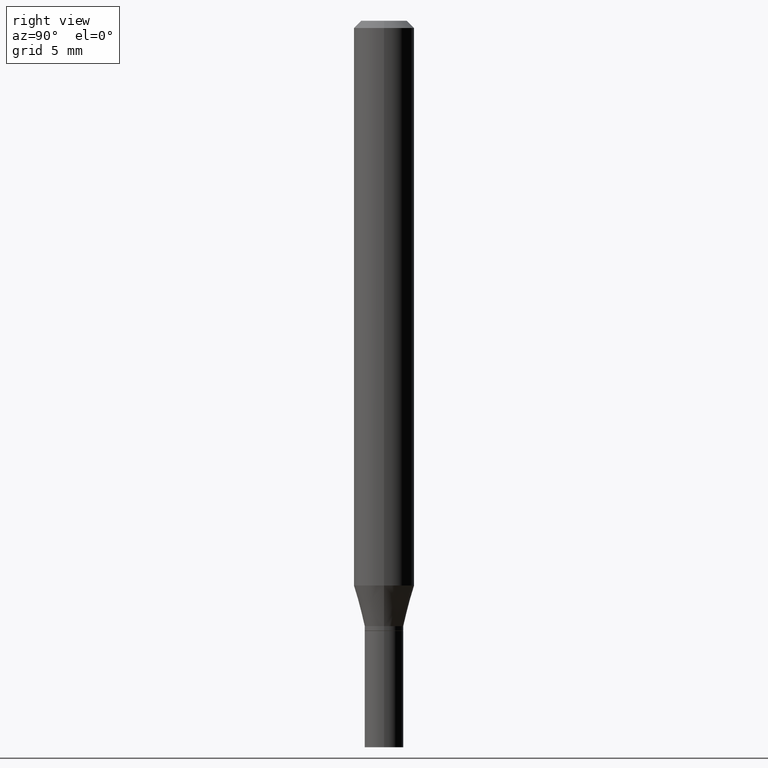
[diagram: clean part render]
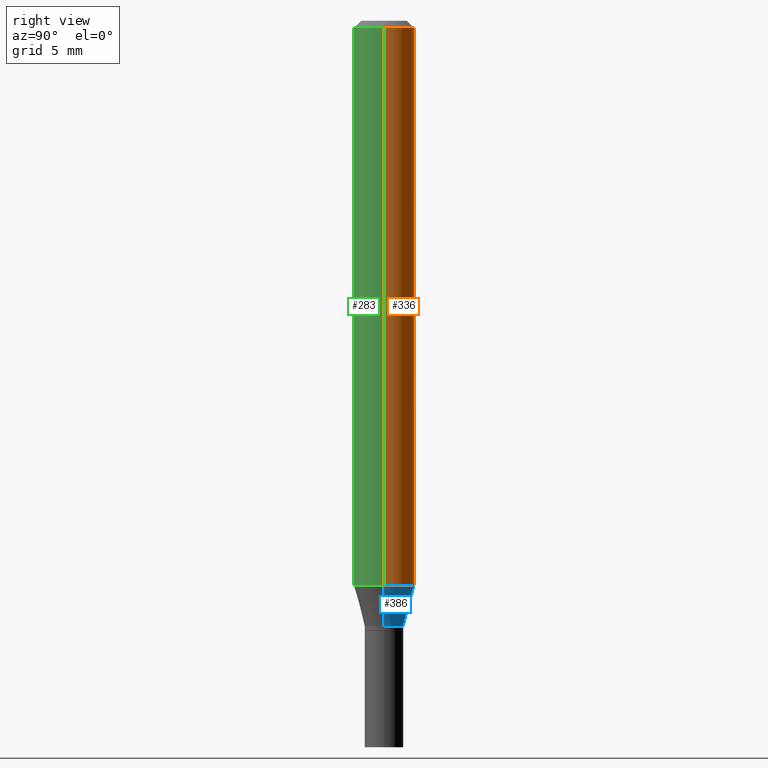
[diagram: same view with three faces highlighted in distinct colors, each labeled with its STEP entity id]
A machine part, right view with three faces highlighted in distinct colors.
Their STEP definitions:

[orange] entity #336 — the highlighted cylindrical surface (edge-blend (fillet) strip) has radius 1.5875 mm, axis along (-0, 0, 1).
#7 = VERTEX_POINT ( 'NONE', #165 ) ;
#15 = FACE_OUTER_BOUND ( 'NONE', #455, .T. ) ;
#19 = DIRECTION ( 'NONE',  ( -2.445468806185136597E-29, 3.491481338843145583E-15, 1.000000000000000000 ) ) ;
#53 = EDGE_CURVE ( 'NONE', #7, #229, #369, .T. ) ;
#60 = CARTESIAN_POINT ( 'NONE',  ( 0.06250000000000000000, -4.364351673553916694E-16, 3.047610484872459871E-30 ) ) ;
#76 = EDGE_CURVE ( 'NONE', #229, #119, #236, .T. ) ;
#89 = AXIS2_PLACEMENT_3D ( 'NONE', #453, #19, #297 ) ;
#93 = CYLINDRICAL_SURFACE ( 'NONE', #114, 0.06250000000000000000 ) ;
#114 = AXIS2_PLACEMENT_3D ( 'NONE', #436, #151, #394 ) ;
#117 = DIRECTION ( 'NONE',  ( -2.445468806185136597E-29, 3.491481338843145583E-15, 1.000000000000000000 ) ) ;
#119 = VERTEX_POINT ( 'NONE', #145 ) ;
#131 = ORIENTED_EDGE ( 'NONE', *, *, #337, .F. ) ;
#145 = CARTESIAN_POINT ( 'NONE',  ( -0.06250000000000000000, -1.617680897278012890E-15, -0.01499999999999999944 ) ) ;
#151 = DIRECTION ( 'NONE',  ( -2.445468806185136597E-29, 3.491481338843145583E-15, 1.000000000000000000 ) ) ;
#162 = CARTESIAN_POINT ( 'NONE',  ( -0.06250000000000000000, 4.440892098500626162E-16, -3.074334431409316114E-30 ) ) ;
#165 = CARTESIAN_POINT ( 'NONE',  ( 0.06250000000000000000, -4.507603161528894814E-15, -1.166028856829700144 ) ) ;
#190 = VECTOR ( 'NONE', #368, 39.37007874015748143 ) ;
#202 = CARTESIAN_POINT ( 'NONE',  ( -0.06250000000000000000, -3.627078784323441317E-15, -1.166028856829700144 ) ) ;
#203 = ORIENTED_EDGE ( 'NONE', *, *, #378, .F. ) ;
#204 = AXIS2_PLACEMENT_3D ( 'NONE', #344, #117, #440 ) ;
#229 = VERTEX_POINT ( 'NONE', #202 ) ;
#236 = LINE ( 'NONE', #162, #309 ) ;
#253 = CARTESIAN_POINT ( 'NONE',  ( 0.06250000000000000000, -4.888073874380388472E-16, -0.01499999999999999944 ) ) ;
#264 = LINE ( 'NONE', #60, #190 ) ;
#297 = DIRECTION ( 'NONE',  ( 1.000000000000000000, -6.982962677686262766E-15, 0.000000000000000000 ) ) ;
#309 = VECTOR ( 'NONE', #371, 39.37007874015748143 ) ;
#336 = ADVANCED_FACE ( 'NONE', ( #15 ), #93, .T. ) ;
#337 = EDGE_CURVE ( 'NONE', #345, #119, #391, .T. ) ;
#344 = CARTESIAN_POINT ( 'NONE',  ( 3.668203209277705088E-31, -5.237222008264718399E-17, -0.01499999999999999944 ) ) ;
#345 = VERTEX_POINT ( 'NONE', #253 ) ;
#368 = DIRECTION ( 'NONE',  ( -2.445468806185136877E-29, 3.491481338843145188E-15, 1.000000000000000000 ) ) ;
#369 = CIRCLE ( 'NONE', #89, 0.06250000000000000000 ) ;
#371 = DIRECTION ( 'NONE',  ( -2.445468806185136877E-29, 3.491481338843145188E-15, 1.000000000000000000 ) ) ;
#378 = EDGE_CURVE ( 'NONE', #7, #345, #264, .T. ) ;
#391 = CIRCLE ( 'NONE', #204, 0.06250000000000000000 ) ;
#394 = DIRECTION ( 'NONE',  ( 1.000000000000000000, -6.982962677686266711E-15, 4.876176775795935793E-29 ) ) ;
#401 = ORIENTED_EDGE ( 'NONE', *, *, #76, .T. ) ;
#436 = CARTESIAN_POINT ( 'NONE',  ( 0.000000000000000000, 0.000000000000000000, 0.000000000000000000 ) ) ;
#437 = ORIENTED_EDGE ( 'NONE', *, *, #53, .T. ) ;
#440 = DIRECTION ( 'NONE',  ( 1.000000000000000000, -6.982962677686266711E-15, 0.000000000000000000 ) ) ;
#453 = CARTESIAN_POINT ( 'NONE',  ( 2.851487196488746564E-29, -4.071167994173503933E-15, -1.166028856829700144 ) ) ;
#455 = EDGE_LOOP ( 'NONE', ( #437, #401, #131, #203 ) ) ;

[blue] entity #386 — the highlighted conical surface has half-angle 15 deg.
#7 = VERTEX_POINT ( 'NONE', #165 ) ;
#9 = AXIS2_PLACEMENT_3D ( 'NONE', #29, #198, #21 ) ;
#19 = DIRECTION ( 'NONE',  ( -2.445468806185136597E-29, 3.491481338843145583E-15, 1.000000000000000000 ) ) ;
#21 = DIRECTION ( 'NONE',  ( 1.000000000000000000, -6.982962677686265133E-15, 0.000000000000000000 ) ) ;
#29 = CARTESIAN_POINT ( 'NONE',  ( 3.056836007731421306E-29, -4.364351673553932471E-15, -1.250000000000000000 ) ) ;
#41 = ORIENTED_EDGE ( 'NONE', *, *, #53, .F. ) ;
#53 = EDGE_CURVE ( 'NONE', #7, #229, #369, .T. ) ;
#64 = VECTOR ( 'NONE', #281, 39.37007874015748143 ) ;
#89 = AXIS2_PLACEMENT_3D ( 'NONE', #453, #19, #297 ) ;
#138 = VERTEX_POINT ( 'NONE', #164 ) ;
#164 = CARTESIAN_POINT ( 'NONE',  ( 0.03999999999999990369, -4.643670180661382509E-15, -1.250000000000000000 ) ) ;
#165 = CARTESIAN_POINT ( 'NONE',  ( 0.06250000000000000000, -4.507603161528894814E-15, -1.166028856829700144 ) ) ;
#166 = VECTOR ( 'NONE', #317, 39.37007874015748143 ) ;
#198 = DIRECTION ( 'NONE',  ( -2.445468806185136597E-29, 3.491481338843145583E-15, 1.000000000000000000 ) ) ;
#202 = CARTESIAN_POINT ( 'NONE',  ( -0.06250000000000000000, -3.627078784323441317E-15, -1.166028856829700144 ) ) ;
#205 = DIRECTION ( 'NONE',  ( 1.000000000000000000, -6.982962677686265133E-15, 0.000000000000000000 ) ) ;
#210 = EDGE_CURVE ( 'NONE', #138, #277, #427, .T. ) ;
#219 = CARTESIAN_POINT ( 'NONE',  ( -0.03999999999999990369, -3.853606681786667125E-15, -1.250000000000000000 ) ) ;
#223 = ORIENTED_EDGE ( 'NONE', *, *, #249, .T. ) ;
#229 = VERTEX_POINT ( 'NONE', #202 ) ;
#239 = LINE ( 'NONE', #347, #166 ) ;
#249 = EDGE_CURVE ( 'NONE', #277, #229, #290, .T. ) ;
#263 = CARTESIAN_POINT ( 'NONE',  ( 3.056836007731421306E-29, -4.364351673553932471E-15, -1.250000000000000000 ) ) ;
#277 = VERTEX_POINT ( 'NONE', #219 ) ;
#279 = ORIENTED_EDGE ( 'NONE', *, *, #210, .T. ) ;
#281 = DIRECTION ( 'NONE',  ( -0.2588190451025210725, 5.211531920934548675E-15, 0.9659258262890682012 ) ) ;
#290 = LINE ( 'NONE', #323, #64 ) ;
#292 = EDGE_CURVE ( 'NONE', #138, #7, #239, .T. ) ;
#293 = ORIENTED_EDGE ( 'NONE', *, *, #292, .F. ) ;
#296 = AXIS2_PLACEMENT_3D ( 'NONE', #263, #418, #205 ) ;
#297 = DIRECTION ( 'NONE',  ( 1.000000000000000000, -6.982962677686262766E-15, 0.000000000000000000 ) ) ;
#303 = CONICAL_SURFACE ( 'NONE', #9, 0.03999999999999990369, 0.2617993877991497409 ) ;
#317 = DIRECTION ( 'NONE',  ( 0.2588190451025210725, 1.565188264969624137E-15, 0.9659258262890682012 ) ) ;
#323 = CARTESIAN_POINT ( 'NONE',  ( -0.03999999999999990369, -4.080134579249892933E-15, -1.250000000000000000 ) ) ;
#340 = EDGE_LOOP ( 'NONE', ( #279, #223, #41, #293 ) ) ;
#347 = CARTESIAN_POINT ( 'NONE',  ( 0.03999999999999990369, -4.643670180661382509E-15, -1.250000000000000000 ) ) ;
#369 = CIRCLE ( 'NONE', #89, 0.06250000000000000000 ) ;
#386 = ADVANCED_FACE ( 'NONE', ( #456 ), #303, .T. ) ;
#418 = DIRECTION ( 'NONE',  ( -2.445468806185136597E-29, 3.491481338843145583E-15, 1.000000000000000000 ) ) ;
#427 = CIRCLE ( 'NONE', #296, 0.03999999999999990369 ) ;
#453 = CARTESIAN_POINT ( 'NONE',  ( 2.851487196488746564E-29, -4.071167994173503933E-15, -1.166028856829700144 ) ) ;
#456 = FACE_OUTER_BOUND ( 'NONE', #340, .T. ) ;

[green] entity #283 — the highlighted cylindrical surface (edge-blend (fillet) strip) has radius 1.5875 mm, axis along (-0, 0, 1).
#7 = VERTEX_POINT ( 'NONE', #165 ) ;
#13 = ORIENTED_EDGE ( 'NONE', *, *, #378, .T. ) ;
#34 = FACE_OUTER_BOUND ( 'NONE', #135, .T. ) ;
#36 = CYLINDRICAL_SURFACE ( 'NONE', #230, 0.06250000000000000000 ) ;
#37 = CARTESIAN_POINT ( 'NONE',  ( 2.851487196488746564E-29, -4.071167994173503933E-15, -1.166028856829700144 ) ) ;
#38 = DIRECTION ( 'NONE',  ( 1.000000000000000000, -6.982962677686266711E-15, 0.000000000000000000 ) ) ;
#54 = DIRECTION ( 'NONE',  ( -2.445468806185136597E-29, 3.491481338843145583E-15, 1.000000000000000000 ) ) ;
#60 = CARTESIAN_POINT ( 'NONE',  ( 0.06250000000000000000, -4.364351673553916694E-16, 3.047610484872459871E-30 ) ) ;
#73 = CIRCLE ( 'NONE', #458, 0.06250000000000000000 ) ;
#76 = EDGE_CURVE ( 'NONE', #229, #119, #236, .T. ) ;
#84 = EDGE_CURVE ( 'NONE', #119, #345, #442, .T. ) ;
#119 = VERTEX_POINT ( 'NONE', #145 ) ;
#135 = EDGE_LOOP ( 'NONE', ( #146, #152, #13, #324 ) ) ;
#136 = DIRECTION ( 'NONE',  ( 1.000000000000000000, -6.982962677686262766E-15, 0.000000000000000000 ) ) ;
#137 = DIRECTION ( 'NONE',  ( -2.445468806185136597E-29, 3.491481338843145583E-15, 1.000000000000000000 ) ) ;
#145 = CARTESIAN_POINT ( 'NONE',  ( -0.06250000000000000000, -1.617680897278012890E-15, -0.01499999999999999944 ) ) ;
#146 = ORIENTED_EDGE ( 'NONE', *, *, #76, .F. ) ;
#152 = ORIENTED_EDGE ( 'NONE', *, *, #206, .T. ) ;
#162 = CARTESIAN_POINT ( 'NONE',  ( -0.06250000000000000000, 4.440892098500626162E-16, -3.074334431409316114E-30 ) ) ;
#165 = CARTESIAN_POINT ( 'NONE',  ( 0.06250000000000000000, -4.507603161528894814E-15, -1.166028856829700144 ) ) ;
#170 = DIRECTION ( 'NONE',  ( 1.000000000000000000, -6.982962677686266711E-15, 4.876176775795935793E-29 ) ) ;
#175 = DIRECTION ( 'NONE',  ( -2.445468806185136597E-29, 3.491481338843145583E-15, 1.000000000000000000 ) ) ;
#190 = VECTOR ( 'NONE', #368, 39.37007874015748143 ) ;
#202 = CARTESIAN_POINT ( 'NONE',  ( -0.06250000000000000000, -3.627078784323441317E-15, -1.166028856829700144 ) ) ;
#206 = EDGE_CURVE ( 'NONE', #229, #7, #73, .T. ) ;
#229 = VERTEX_POINT ( 'NONE', #202 ) ;
#230 = AXIS2_PLACEMENT_3D ( 'NONE', #414, #137, #170 ) ;
#236 = LINE ( 'NONE', #162, #309 ) ;
#250 = AXIS2_PLACEMENT_3D ( 'NONE', #457, #54, #38 ) ;
#253 = CARTESIAN_POINT ( 'NONE',  ( 0.06250000000000000000, -4.888073874380388472E-16, -0.01499999999999999944 ) ) ;
#264 = LINE ( 'NONE', #60, #190 ) ;
#283 = ADVANCED_FACE ( 'NONE', ( #34 ), #36, .T. ) ;
#309 = VECTOR ( 'NONE', #371, 39.37007874015748143 ) ;
#324 = ORIENTED_EDGE ( 'NONE', *, *, #84, .F. ) ;
#345 = VERTEX_POINT ( 'NONE', #253 ) ;
#368 = DIRECTION ( 'NONE',  ( -2.445468806185136877E-29, 3.491481338843145188E-15, 1.000000000000000000 ) ) ;
#371 = DIRECTION ( 'NONE',  ( -2.445468806185136877E-29, 3.491481338843145188E-15, 1.000000000000000000 ) ) ;
#378 = EDGE_CURVE ( 'NONE', #7, #345, #264, .T. ) ;
#414 = CARTESIAN_POINT ( 'NONE',  ( 0.000000000000000000, 0.000000000000000000, 0.000000000000000000 ) ) ;
#442 = CIRCLE ( 'NONE', #250, 0.06250000000000000000 ) ;
#457 = CARTESIAN_POINT ( 'NONE',  ( 3.668203209277705088E-31, -5.237222008264718399E-17, -0.01499999999999999944 ) ) ;
#458 = AXIS2_PLACEMENT_3D ( 'NONE', #37, #175, #136 ) ;